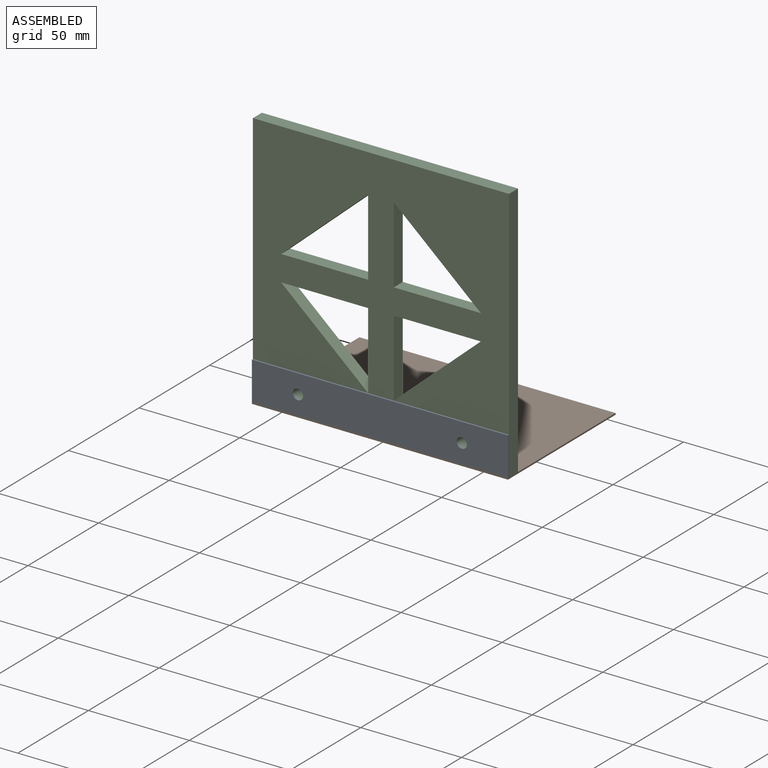
[diagram: assembled view]
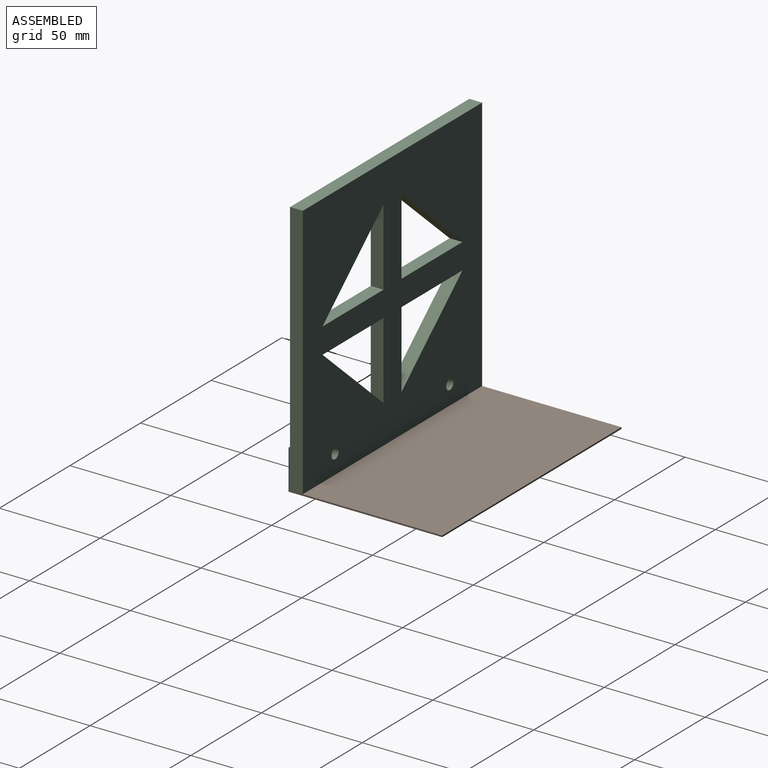
[diagram: assembled view, second angle]
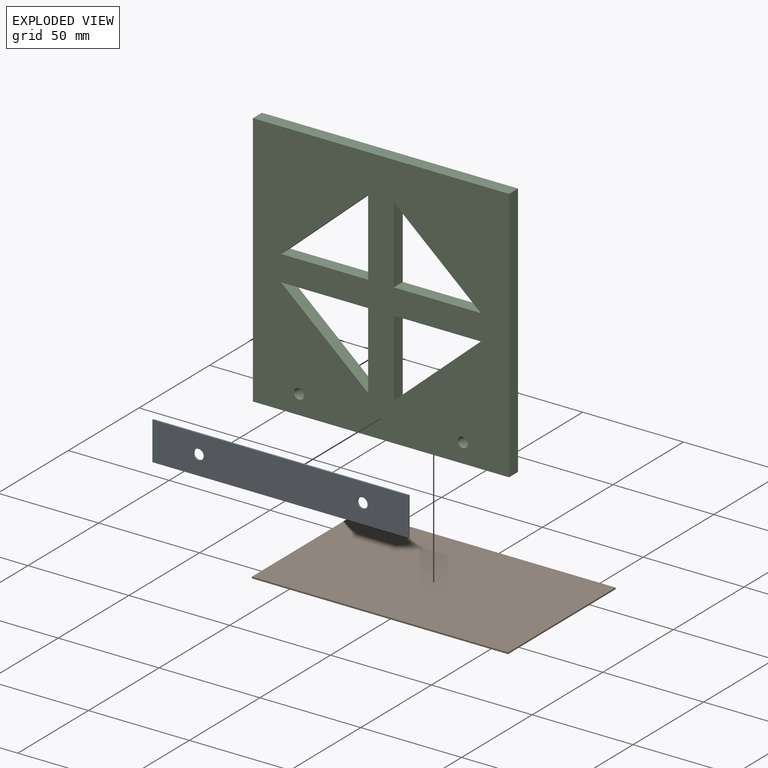
[diagram: exploded view]
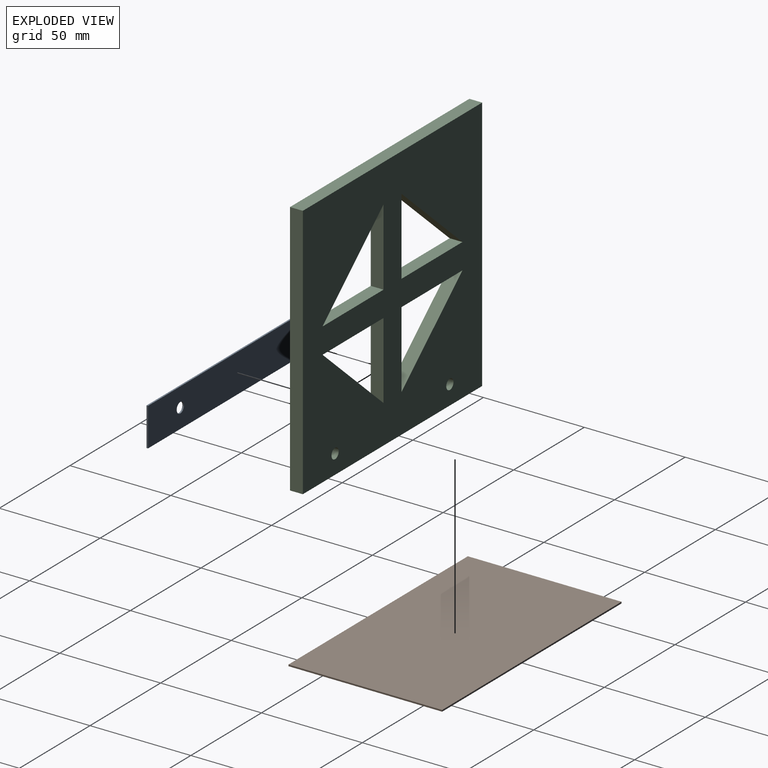
[diagram: exploded view, second angle]
ASSEMBLY  parts=3 mates=2
PART A: 8 faces, bbox 127x0.8x19.1 mm
  f0: plane 19.05x0.76mm, normal (1,0,0), area 14.5mm2, adj f1,f3,f4,f5
  f1: plane 127x0.76mm, normal (0,0,1), area 96.8mm2, adj f0,f2,f4,f5
  f2: plane 19.05x0.76mm, normal (-1,0,0), area 14.5mm2, adj f1,f3,f4,f5
  f3: plane 127x0.76mm, normal (0,0,-1), area 96.8mm2, adj f0,f2,f4,f5
  f4: plane 127x19.05mm, normal (0,-1,0), area 2378.4mm2, adj f0,f1,f2,f3,f6,f7
  f5: plane 127x19.05mm, normal (0,1,0), area 2378.4mm2, adj f0,f1,f2,f3,f6,f7
  f6: cylinder r=2.55mm len=5.11mm, axis (0,1,0), area 12.2mm2, adj f4,f5
  f7: cylinder r=2.55mm len=5.11mm, axis (0,1,0), area 12.2mm2, adj f4,f5
PART B: 6 faces, bbox 127x76.2x0.8 mm
  f0: plane 127x0.76mm, normal (0,1,0), area 96.8mm2, adj f1,f3,f4,f5
  f1: plane 76.2x0.76mm, normal (-1,0,0), area 58.1mm2, adj f0,f2,f4,f5
  f2: plane 127x0.76mm, normal (0,-1,0), area 96.8mm2, adj f1,f3,f4,f5
  f3: plane 76.2x0.76mm, normal (1,0,0), area 58.1mm2, adj f0,f2,f4,f5
  f4: plane 127x76.2mm, normal (0,0,1), area 9677.4mm2, adj f0,f1,f2,f3
  f5: plane 127x76.2mm, normal (0,0,-1), area 9677.4mm2, adj f0,f1,f2,f3
PART C: 20 faces, bbox 127x6.4x127 mm
  f0: plane 127x127mm, normal (0,-1,0), area 12797.7mm2, adj f2,f3,f4,f5,f6,f7,f8,f9
  f1: plane 127x127mm, normal (0,1,0), area 12797.7mm2, adj f2,f3,f4,f5,f6,f7,f8,f9
  f2: plane 127x6.35mm, normal (0,0,1), area 806.5mm2, adj f0,f1,f3,f5
  f3: plane 127x6.35mm, normal (-1,0,0), area 806.5mm2, adj f0,f1,f2,f4
  f4: plane 127x6.35mm, normal (0,0,-1), area 806.5mm2, adj f0,f1,f3,f5
  f5: plane 127x6.35mm, normal (1,0,0), area 806.5mm2, adj f0,f1,f2,f4
  f6: plane 38.1x6.35mm, normal (-1,0,0), area 241.9mm2, adj f0,f1,f7,f8
  f7: plane 43.18x38.1mm, normal (0.66,0,-0.75), area 365.7mm2, adj f0,f1,f6,f8
  f8: plane 43.18x6.35mm, normal (0,0,1), area 274.2mm2, adj f0,f1,f6,f7
  f9: plane 43.18x6.35mm, normal (0,0,-1), area 274.2mm2, adj f0,f1,f10,f11
  f10: plane 38.1x6.35mm, normal (1,0,0), area 241.9mm2, adj f0,f1,f9,f11
  f11: plane 43.18x38.1mm, normal (-0.66,0,0.75), area 365.7mm2, adj f0,f1,f9,f10
  f12: plane 38.1x6.35mm, normal (1,0,0), area 241.9mm2, adj f0,f1,f13,f14
  f13: plane 43.18x6.35mm, normal (0,0,1), area 274.2mm2, adj f0,f1,f12,f14
  f14: plane 43.18x38.1mm, normal (-0.66,0,-0.75), area 365.7mm2, adj f0,f1,f12,f13
  f15: plane 38.1x6.35mm, normal (-1,0,0), area 241.9mm2, adj f0,f1,f16,f17
  f16: plane 43.18x6.35mm, normal (0,0,-1), area 274.2mm2, adj f0,f1,f15,f17
  f17: plane 43.18x38.1mm, normal (0.66,0,0.75), area 365.7mm2, adj f0,f1,f15,f16
  f18: cylinder r=2.55mm len=6.35mm, axis (0,-1,0), area 101.8mm2, adj f0,f1
  f19: cylinder r=2.55mm len=6.35mm, axis (0,-1,0), area 101.8mm2, adj f0,f1
PLACE A t=(-1.35,37.68,-63.17)mm
PLACE B t=(-1.35,75.02,-73.46)mm
PLACE C t=(-1.35,44.03,-9.19)mm
MATE fastened A.f5 <-> C.f0  axis (0,1,0) through (62.15,37.68,-72.69)mm
MATE fastened B.f4 <-> A.f3  axis (0,0,1) through (-64.85,36.92,-72.69)mm
